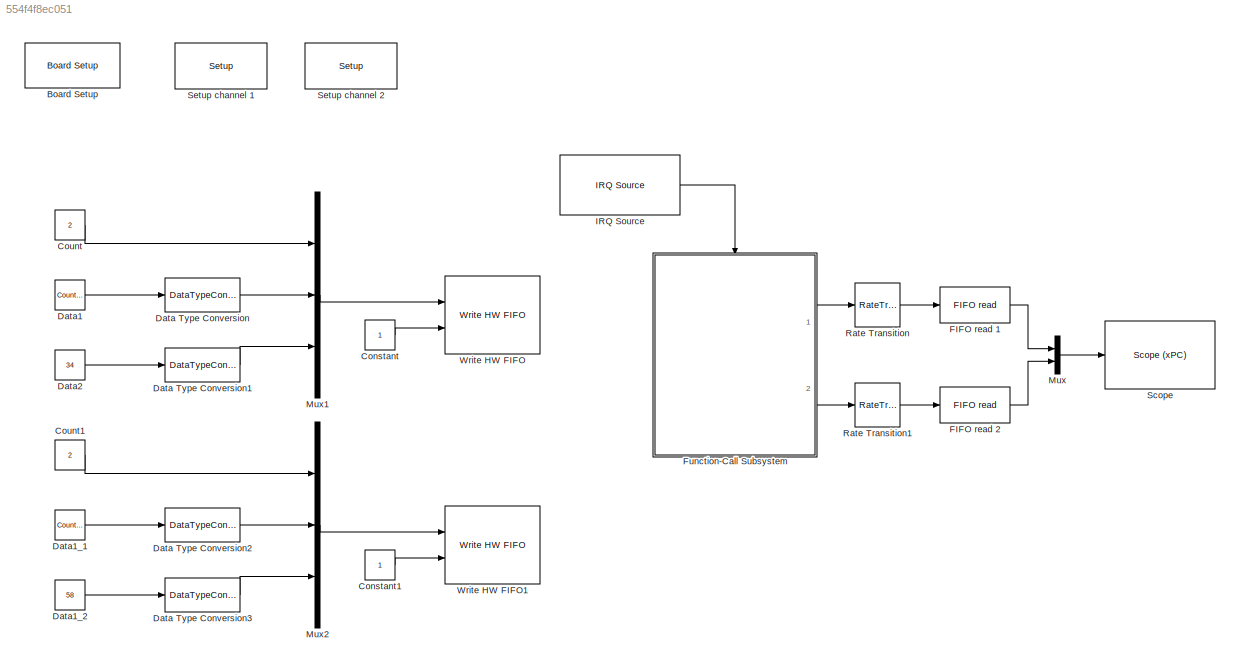
MODEL slx_554f4f8ec051
KIND model
CONFIG InitFcn = Ts = 0.1;
BLOCK [Reference] Board Setup  REF=speedgoatlib/IO503/Speedgoat IO503  (lib defined in mdl_2b10c7445f81, mdl_649b3eec89a6, +4 more)
Internal blocks/Board Setup
  Ports = []
  SourceBlock = speedgoatlib/IO503/Speedgoat IO503\nInternal blocks/Board Setup
  SourceType = board_setup_XR17D15x
  irqnum = 10
  slot = -1
BLOCK [Constant] Constant
  OutDataTypeStr = Inherit: Inherit via back propagation
  SampleTime = Ts
BLOCK [Constant] Constant1
  OutDataTypeStr = Inherit: Inherit via back propagation
  SampleTime = Ts
BLOCK [Constant] Count
  OutDataTypeStr = Inherit: Inherit via back propagation
  SampleTime = Ts
  Value = 2
BLOCK [Constant] Count1
  OutDataTypeStr = Inherit: Inherit via back propagation
  SampleTime = Ts
  Value = 2
BLOCK [DataTypeConversion] Data Type Conversion
  RndMeth = Floor
  SaturateOnIntegerOverflow = off
BLOCK [DataTypeConversion] Data Type Conversion1
  RndMeth = Floor
  SaturateOnIntegerOverflow = off
BLOCK [DataTypeConversion] Data Type Conversion2
  RndMeth = Floor
  SaturateOnIntegerOverflow = off
BLOCK [DataTypeConversion] Data Type Conversion3
  RndMeth = Floor
  SaturateOnIntegerOverflow = off
BLOCK [Reference] Data1  REF=simulink/Sources/Counter
Free-Running
  NumBits = 8
  Ports = [0, 1]
  SourceBlock = simulink/Sources/Counter\nFree-Running
  SourceType = Counter Free-Running
  tsamp = Ts
BLOCK [Reference] Data1_1  REF=simulink/Sources/Counter
Free-Running
  NumBits = 8
  Ports = [0, 1]
  SourceBlock = simulink/Sources/Counter\nFree-Running
  SourceType = Counter Free-Running
  tsamp = Ts
BLOCK [Constant] Data1_2
  OutDataTypeStr = Inherit: Inherit via back propagation
  SampleTime = Ts
  Value = 58
BLOCK [Constant] Data2
  OutDataTypeStr = Inherit: Inherit via back propagation
  SampleTime = Ts
  Value = 34
BLOCK [Reference] FIFO read 1  REF=xpcseriallib/FIFO read 
  Ports = [1, 1]
  SourceBlock = xpcseriallib/FIFO read
  SourceType = Asynchronous FIFO Block: reader
  delimiter = 13
  enable = off
  enableout = off
  maxsize = 2
  minsize = 1
  outputtype = count+32 bit int
  sampletime = -1
  usedelimiter = off
BLOCK [Reference] FIFO read 2  REF=xpcseriallib/FIFO read 
  Ports = [1, 1]
  SourceBlock = xpcseriallib/FIFO read
  SourceType = Asynchronous FIFO Block: reader
  delimiter = 13
  enable = off
  enableout = off
  maxsize = 2
  minsize = 1
  outputtype = count+32 bit int
  sampletime = -1
  usedelimiter = off
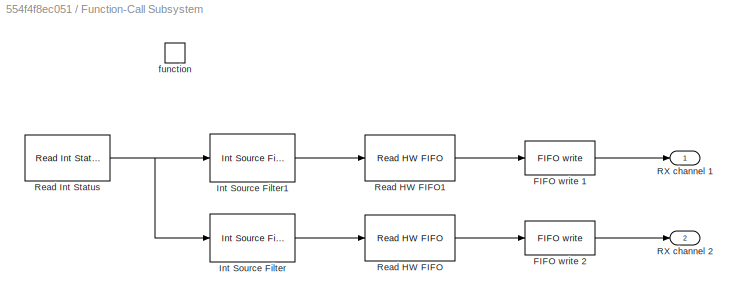
BLOCK [SubSystem] Function-Call Subsystem
  Ports = [0, 2, 0, 1]
  RequestExecContextInheritance = off
  TreatAsAtomicUnit = on
BLOCK [Reference] Function-Call Subsystem/FIFO write 1  REF=xpcseriallib/FIFO write 
  Ports = [1, 1]
  SourceBlock = xpcseriallib/FIFO write
  SourceType = Asynchronous FIFO Block: writer
  id = RCV channel 2
  inputtype = count+32 bit uint
  present = off
  sampletime = -1
  size = 64
BLOCK [Reference] Function-Call Subsystem/FIFO write 2  REF=xpcseriallib/FIFO write 
  Ports = [1, 1]
  SourceBlock = xpcseriallib/FIFO write
  SourceType = Asynchronous FIFO Block: writer
  id = RCV channel 2
  inputtype = count+32 bit uint
  present = off
  sampletime = -1
  size = 64
BLOCK [Reference] Function-Call Subsystem/Int Source Filter  REF=speedgoatlib/IO503/Speedgoat IO503  (lib defined in mdl_2b10c7445f81, mdl_649b3eec89a6, +4 more)
Internal blocks/Int Source Filter
  Ports = [1, 1]
  SourceBlock = speedgoatlib/IO503/Speedgoat IO503\nInternal blocks/Int Source Filter
  SourceType = int_source_filter_XR17D15x
  port = 2
  value = Receive data
BLOCK [Reference] Function-Call Subsystem/Int Source Filter1  REF=speedgoatlib/IO503/Speedgoat IO503  (lib defined in mdl_2b10c7445f81, mdl_649b3eec89a6, +4 more)
Internal blocks/Int Source Filter
  Ports = [1, 1]
  SourceBlock = speedgoatlib/IO503/Speedgoat IO503\nInternal blocks/Int Source Filter
  SourceType = int_source_filter_XR17D15x
  port = 1
  value = Receive data
BLOCK [Outport] Function-Call Subsystem/RX channel 1
  IconDisplay = Port number
BLOCK [Outport] Function-Call Subsystem/RX channel 2
  IconDisplay = Port number
  Port = 2
BLOCK [Reference] Function-Call Subsystem/Read HW FIFO  REF=speedgoatlib/IO503/Speedgoat IO503  (lib defined in mdl_2b10c7445f81, mdl_649b3eec89a6, +4 more)
Internal blocks/Read HW FIFO
  Ports = [1, 1]
  SourceBlock = speedgoatlib/IO503/Speedgoat IO503\nInternal blocks/Read HW FIFO
  SourceType = read_hw_fifo_XR17D15x
  flush = on
  port = 2
  slot = -1
BLOCK [Reference] Function-Call Subsystem/Read HW FIFO1  REF=speedgoatlib/IO503/Speedgoat IO503  (lib defined in mdl_2b10c7445f81, mdl_649b3eec89a6, +4 more)
Internal blocks/Read HW FIFO
  Ports = [1, 1]
  SourceBlock = speedgoatlib/IO503/Speedgoat IO503\nInternal blocks/Read HW FIFO
  SourceType = read_hw_fifo_XR17D15x
  flush = on
  port = 1
  slot = -1
BLOCK [Reference] Function-Call Subsystem/Read Int Status  REF=speedgoatlib/IO503/Speedgoat IO503  (lib defined in mdl_2b10c7445f81, mdl_649b3eec89a6, +4 more)
Internal blocks/Read Int Status
  Ports = [0, 1]
  SourceBlock = speedgoatlib/IO503/Speedgoat IO503\nInternal blocks/Read Int Status
  SourceType = read_int_status_XR17D15x
  slot = -1
BLOCK [TriggerPort] Function-Call Subsystem/function
  Ports = []
  StatesWhenEnabling = held
  TriggerType = function-call
BLOCK [Reference] IRQ Source  REF=xpclib/Asynchronous
Event/IRQ Source
  Ports = [0, 1]
  SourceBlock = xpclib/Asynchronous\nEvent/IRQ Source
  SourceType = xpcinterrupt
  b_type = None/Other
  irqNo = 10
  preempt = 10
  slot = -1
BLOCK [Mux] Mux
  DisplayOption = bar
  Inputs = 2
  Ports = [2, 1]
BLOCK [Mux] Mux1
  DisplayOption = bar
  Inputs = 3
  Ports = [3, 1]
BLOCK [Mux] Mux2
  DisplayOption = bar
  Inputs = 3
  Ports = [3, 1]
BLOCK [RateTransition] Rate Transition
  Deterministic = off
  Integrity = off
  OutPortSampleTime = 0
BLOCK [RateTransition] Rate Transition1
  Deterministic = off
  Integrity = off
  OutPortSampleTime = 0
BLOCK [Reference] Scope   REF=xpclib/Misc./Scope (xPC) 
  Ports = [1]
  SourceBlock = xpclib/Misc./Scope (xPC)
  SourceType = xpcscopeblock
  autorestart = off
  autostart = on
  dynamicfilemode = off
  filename = data.dat
  formatstr = '%15.6f'
  grid = on
  interleave = 1
  maxwritefilesize = 512*1024^2
  mode = Lazy
  noprepostsamples = 0
  nosamples = 3
  scopeno = 1
  scopetype = Target
  triggerlevel = 0.0
  triggermode = FreeRun
  triggersample = 0
  triggerscope = 1
  triggersignal = 1
  triggerslope = Either
  trigsignalfromport = off
  viewmode = Numerical
  writesize = 512
  ylimits = [0,0]
BLOCK [Reference] Setup channel 1   REF=speedgoatlib/IO503/Speedgoat IO503  (lib defined in mdl_2b10c7445f81, mdl_649b3eec89a6, +4 more)
Internal blocks/Setup
  Ports = []
  SourceBlock = speedgoatlib/IO503/Speedgoat IO503\nInternal blocks/Setup
  SourceType = setup_XR17D15x
  bauddivisor = 1
  baudrate = 921600
  ctsmode = none
  mode8x = 16x (standard)
  nstop = 1
  parity = None
  port = 1
  prescale = off
  rlevel = 1
  rs485delay = 0
  rs485mode = off
  slot = -1
  standard = on
  transceiver = RS232 (max 921.6kb/s)
  width = 8
  xoff = 19
  xon = 17
  xonoff = none
BLOCK [Reference] Setup channel 2  REF=speedgoatlib/IO503/Speedgoat IO503  (lib defined in mdl_2b10c7445f81, mdl_649b3eec89a6, +4 more)
Internal blocks/Setup
  Ports = []
  SourceBlock = speedgoatlib/IO503/Speedgoat IO503\nInternal blocks/Setup
  SourceType = setup_XR17D15x
  bauddivisor = 1
  baudrate = 921600
  ctsmode = none
  mode8x = 16x (standard)
  nstop = 1
  parity = None
  port = 2
  prescale = off
  rlevel = 1
  rs485delay = 0
  rs485mode = off
  slot = -1
  standard = on
  transceiver = RS232 (max 921.6kb/s)
  width = 8
  xoff = 19
  xon = 17
  xonoff = none
BLOCK [Reference] Write HW FIFO  REF=speedgoatlib/IO503/Speedgoat IO503  (lib defined in mdl_2b10c7445f81, mdl_649b3eec89a6, +4 more)
Internal blocks/Write HW FIFO
  Ports = [2]
  SourceBlock = speedgoatlib/IO503/Speedgoat IO503\nInternal blocks/Write HW FIFO
  SourceType = write_hw_fifo_XR17D15x
  port = 1
  slot = -1
BLOCK [Reference] Write HW FIFO1  REF=speedgoatlib/IO503/Speedgoat IO503  (lib defined in mdl_2b10c7445f81, mdl_649b3eec89a6, +4 more)
Internal blocks/Write HW FIFO
  Ports = [2]
  SourceBlock = speedgoatlib/IO503/Speedgoat IO503\nInternal blocks/Write HW FIFO
  SourceType = write_hw_fifo_XR17D15x
  port = 2
  slot = -1
LINE Constant1:1 -> Write HW FIFO1:2
LINE Constant:1 -> Write HW FIFO:2
LINE Count1:1 -> Mux2:1
LINE Count:1 -> Mux1:1
LINE Data Type Conversion1:1 -> Mux1:3
LINE Data Type Conversion2:1 -> Mux2:2
LINE Data Type Conversion3:1 -> Mux2:3
LINE Data Type Conversion:1 -> Mux1:2
LINE Data1:1 -> Data Type Conversion:1
LINE Data1_1:1 -> Data Type Conversion2:1
LINE Data1_2:1 -> Data Type Conversion3:1
LINE Data2:1 -> Data Type Conversion1:1
LINE FIFO read 1:1 -> Mux:1
LINE FIFO read 2:1 -> Mux:2
LINE Function-Call Subsystem/FIFO write 1:1 -> Function-Call Subsystem/RX channel 1:1
LINE Function-Call Subsystem/FIFO write 2:1 -> Function-Call Subsystem/RX channel 2:1
LINE Function-Call Subsystem/Int Source Filter1:1 -> Function-Call Subsystem/Read HW FIFO1:1
LINE Function-Call Subsystem/Int Source Filter:1 -> Function-Call Subsystem/Read HW FIFO:1
LINE Function-Call Subsystem/Read HW FIFO1:1 -> Function-Call Subsystem/FIFO write 1:1
LINE Function-Call Subsystem/Read HW FIFO:1 -> Function-Call Subsystem/FIFO write 2:1
NET Function-Call Subsystem/Read Int Status:1 -> Function-Call Subsystem/Int Source Filter1:1, Function-Call Subsystem/Int Source Filter:1
LINE Function-Call Subsystem:1 -> Rate Transition:1
LINE Function-Call Subsystem:2 -> Rate Transition1:1
LINE IRQ Source:1 -> Function-Call Subsystem:trigger
LINE Mux1:1 -> Write HW FIFO:1
LINE Mux2:1 -> Write HW FIFO1:1
LINE Mux:1 -> Scope :1
LINE Rate Transition1:1 -> FIFO read 2:1
LINE Rate Transition:1 -> FIFO read 1:1
note: NET lines group one-source signal fan-out (src -> all destinations, sorted); 1:1 wires keep LINE
